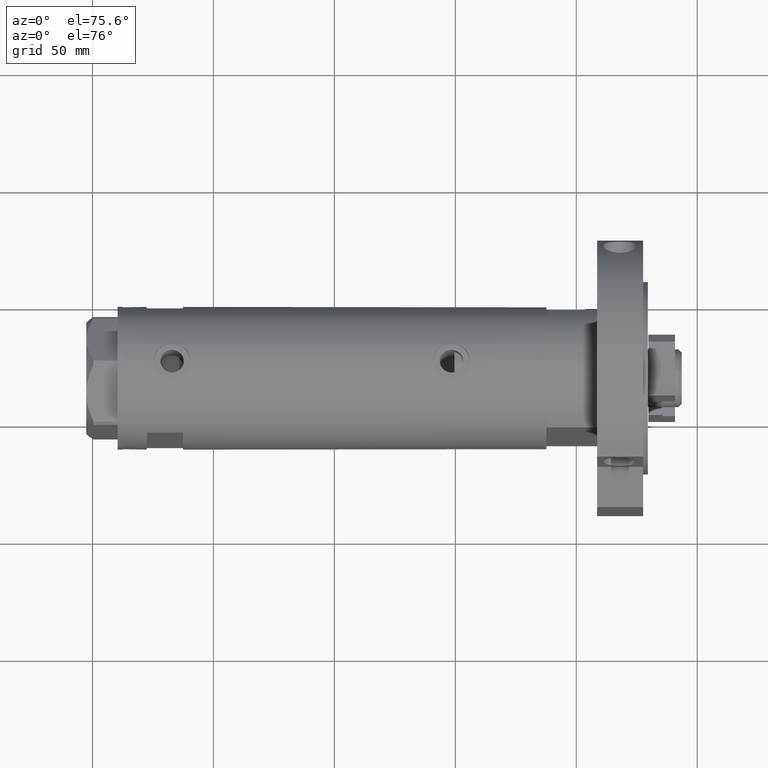
[diagram: clean part render]
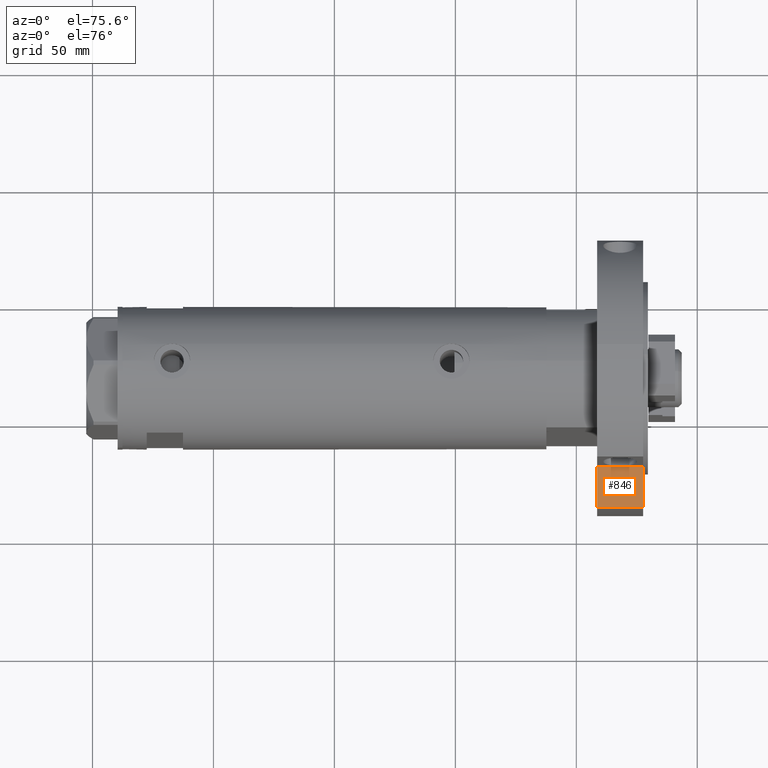
[diagram: same view with one face highlighted and labeled with its STEP entity id]
A machine part, auxiliary view. The second image highlights one B-rep face of the part: STEP entity #846.
In plain terms, the highlighted planar face has unit normal (-0, 0.7071, -0.7071).
Its self-contained STEP definition (entity closure, byte-faithful):
#51 = LINE ( 'NONE', #2014, #7781 ) ;
#321 = CARTESIAN_POINT ( 'NONE',  ( 20.20945616129993283, 42.98007820311755012, 0.000000000000000000 ) ) ;
#338 = LINE ( 'NONE', #4847, #2286 ) ;
#342 = DIRECTION ( 'NONE',  ( -0.000000000000000000, -0.000000000000000000, 1.000000000000000000 ) ) ;
#349 = AXIS2_PLACEMENT_3D ( 'NONE', #321, #4836, #1818 ) ;
#447 = CARTESIAN_POINT ( 'NONE',  ( 20.20945616129993283, 42.98007820311755012, 0.000000000000000000 ) ) ;
#607 = LINE ( 'NONE', #3680, #837 ) ;
#837 = VECTOR ( 'NONE', #1837, 999.9999999999998863 ) ;
#846 = ADVANCED_FACE ( 'NONE', ( #7390 ), #6174, .F. ) ;
#1119 = LINE ( 'NONE', #3327, #2567 ) ;
#1130 = ORIENTED_EDGE ( 'NONE', *, *, #5024, .T. ) ;
#1818 = DIRECTION ( 'NONE',  ( 0.7071067811865510144, -0.7071067811865441310, 0.000000000000000000 ) ) ;
#1837 = DIRECTION ( 'NONE',  ( 0.7071067811865510144, -0.7071067811865441310, 0.000000000000000000 ) ) ;
#2014 = CARTESIAN_POINT ( 'NONE',  ( 6.569366352211361004, 56.62016801220598694, 0.000000000000000000 ) ) ;
#2241 = EDGE_CURVE ( 'NONE', #4962, #5771, #51, .T. ) ;
#2286 = VECTOR ( 'NONE', #3411, 999.9999999999998863 ) ;
#2351 = EDGE_CURVE ( 'NONE', #4962, #8106, #338, .T. ) ;
#2498 = EDGE_CURVE ( 'NONE', #8106, #7076, #1119, .T. ) ;
#2567 = VECTOR ( 'NONE', #342, 1000.000000000000000 ) ;
#2983 = ORIENTED_EDGE ( 'NONE', *, *, #2241, .T. ) ;
#3203 = DIRECTION ( 'NONE',  ( -0.000000000000000000, -0.000000000000000000, 1.000000000000000000 ) ) ;
#3327 = CARTESIAN_POINT ( 'NONE',  ( 20.20945616129993283, 42.98007820311755012, 0.000000000000000000 ) ) ;
#3411 = DIRECTION ( 'NONE',  ( 0.7071067811865510144, -0.7071067811865441310, -0.000000000000000000 ) ) ;
#3680 = CARTESIAN_POINT ( 'NONE',  ( 31.59476718220863845, 31.59476718220895108, 19.00000000000000000 ) ) ;
#3739 = ORIENTED_EDGE ( 'NONE', *, *, #2498, .F. ) ;
#4836 = DIRECTION ( 'NONE',  ( -0.7071067811865441310, -0.7071067811865510144, 0.000000000000000000 ) ) ;
#4847 = CARTESIAN_POINT ( 'NONE',  ( 20.20945616129993283, 42.98007820311755012, 0.000000000000000000 ) ) ;
#4939 = CARTESIAN_POINT ( 'NONE',  ( 6.569366352211361004, 56.62016801220598694, 0.000000000000000000 ) ) ;
#4962 = VERTEX_POINT ( 'NONE', #4939 ) ;
#5024 = EDGE_CURVE ( 'NONE', #5771, #7076, #607, .T. ) ;
#5392 = EDGE_LOOP ( 'NONE', ( #1130, #3739, #6546, #2983 ) ) ;
#5771 = VERTEX_POINT ( 'NONE', #7605 ) ;
#6174 = PLANE ( 'NONE',  #349 ) ;
#6546 = ORIENTED_EDGE ( 'NONE', *, *, #2351, .F. ) ;
#7076 = VERTEX_POINT ( 'NONE', #7143 ) ;
#7143 = CARTESIAN_POINT ( 'NONE',  ( 20.20945616129993283, 42.98007820311755012, 19.00000000000000000 ) ) ;
#7390 = FACE_OUTER_BOUND ( 'NONE', #5392, .T. ) ;
#7605 = CARTESIAN_POINT ( 'NONE',  ( 6.569366352211361004, 56.62016801220598694, 19.00000000000000000 ) ) ;
#7781 = VECTOR ( 'NONE', #3203, 1000.000000000000000 ) ;
#8106 = VERTEX_POINT ( 'NONE', #447 ) ;